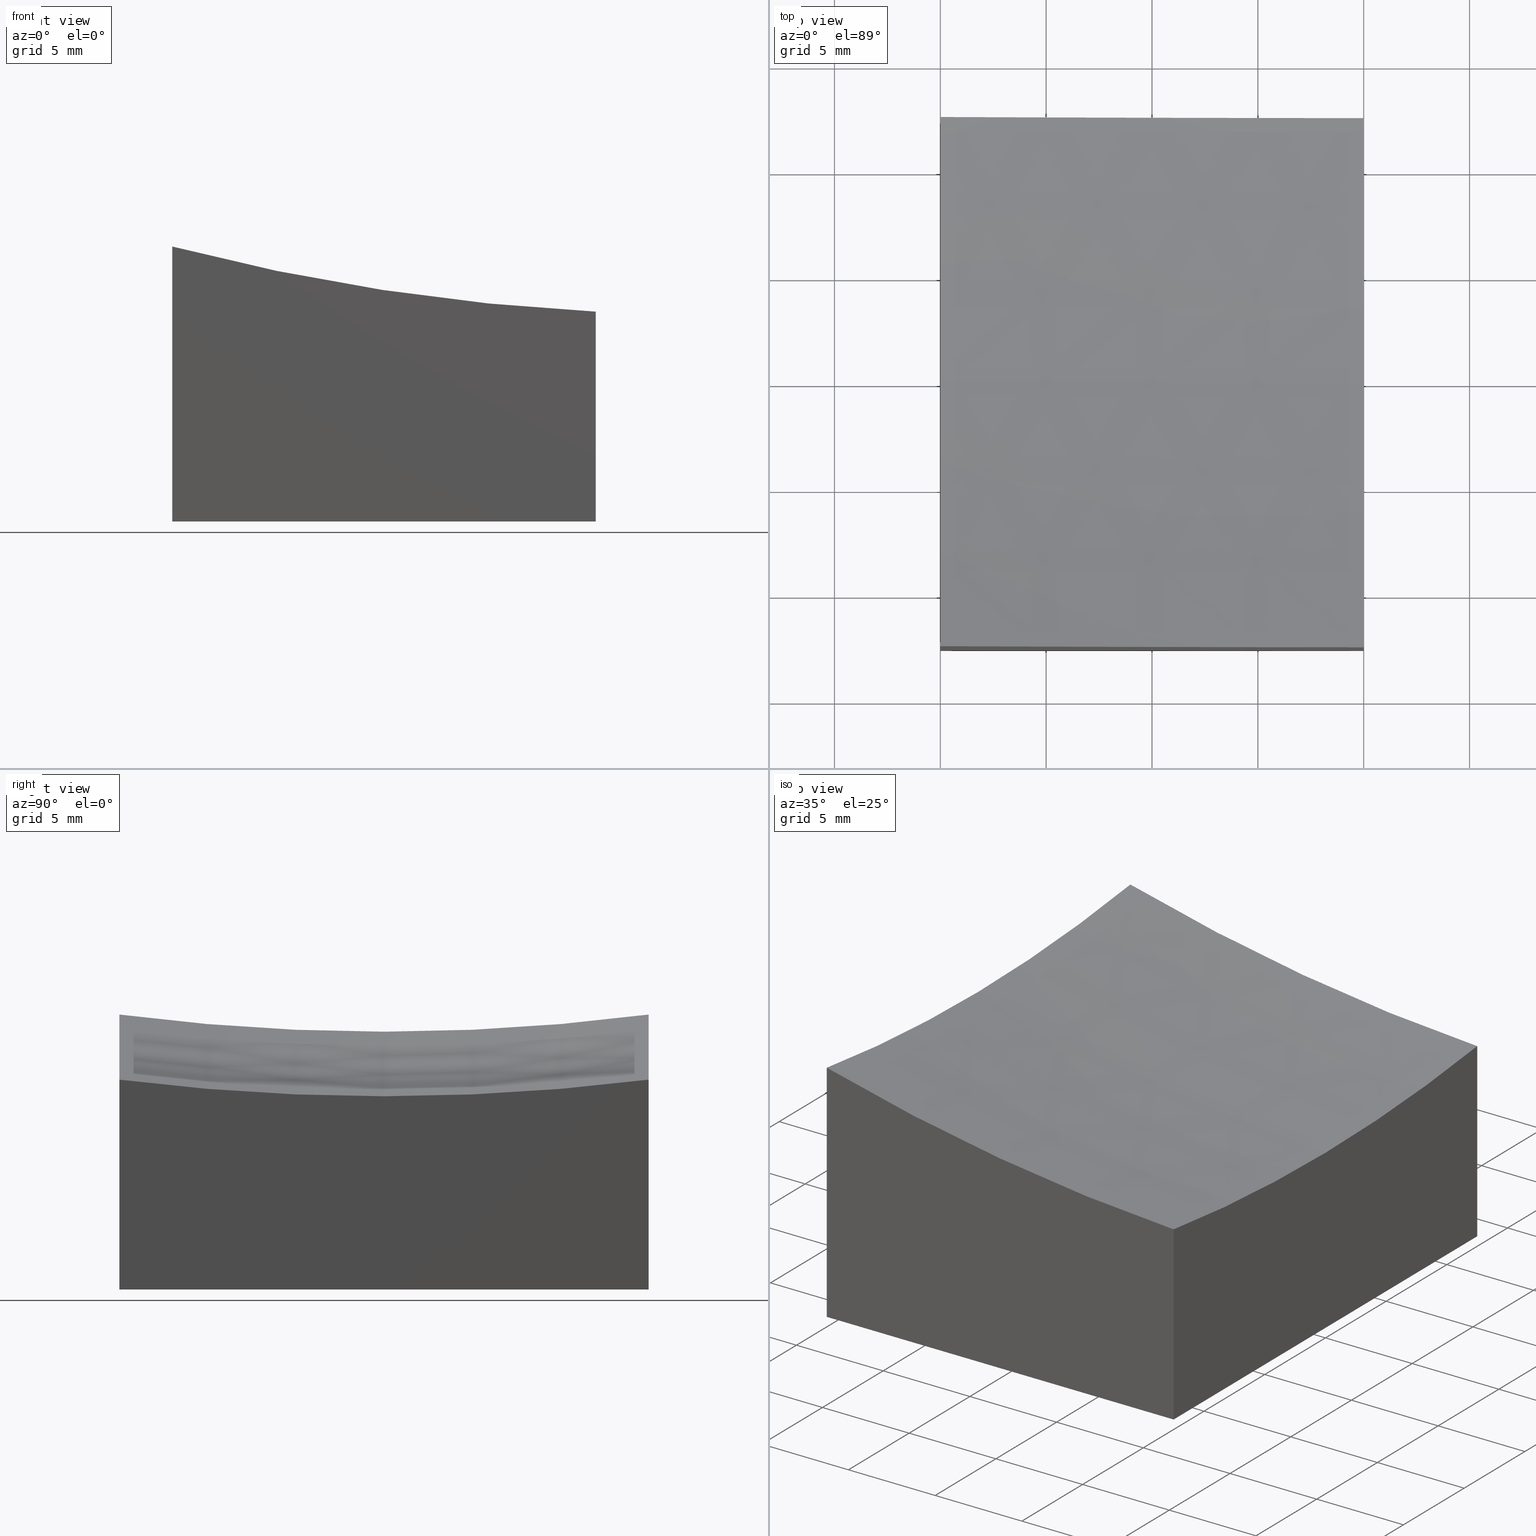
[diagram: canonical four-view strip — front | top / right | iso, engineering-drawing reading convention]
A machine part, canonical four-view strip (front | top / right | iso — engineering-drawing reading convention). The complete STEP part file that produces these views, byte-faithful:
ISO-10303-21;
HEADER;
FILE_DESCRIPTION (( 'STEP AP203' ),
    '1' );
FILE_NAME ('270635.STEP',
    '2024-12-24T02:27:21',
    ( '' ),
    ( '' ),
    'SwSTEP 2.0',
    'SolidWorks 2020',
    '' );
FILE_SCHEMA (( 'CONFIG_CONTROL_DESIGN' ));
ENDSEC;

DATA;
#1 = DATE_AND_TIME ( #251, #86 ) ;
#2 = EDGE_CURVE ( 'NONE', #212, #157, #226, .T. ) ;
#3 = DATE_AND_TIME ( #225, #25 ) ;
#4 = ORGANIZATION ( 'δָ��', 'δָ��', '' ) ;
#5 = PERSON_AND_ORGANIZATION ( #209, #4 ) ;
#6 = DIRECTION ( 'NONE',  ( 0.000000000000000000, 0.000000000000000000, 1.000000000000000000 ) ) ;
#7 = VERTEX_POINT ( 'NONE', #80 ) ;
#8 = CARTESIAN_POINT ( 'NONE',  ( 10.00000000000000178, -12.50000000000000000, 10.00000000000000000 ) ) ;
#9 = CC_DESIGN_PERSON_AND_ORGANIZATION_ASSIGNMENT ( #50, #83, ( #109 ) ) ;
#10 = CARTESIAN_POINT ( 'NONE',  ( -9.999999999999998224, 12.49999999999999645, -10.00000000000000000 ) ) ;
#11 = DIRECTION ( 'NONE',  ( -0.000000000000000000, -1.000000000000000000, -0.000000000000000000 ) ) ;
#12 = AXIS2_PLACEMENT_3D ( 'NONE', #122, #200, #274 ) ;
#13 = DIRECTION ( 'NONE',  ( -0.000000000000000000, -0.000000000000000000, -1.000000000000000000 ) ) ;
#14 = ADVANCED_FACE ( 'NONE', ( #162 ), #53, .F. ) ;
#15 = ORIENTED_EDGE ( 'NONE', *, *, #2, .T. ) ;
#16 = DIRECTION ( 'NONE',  ( -0.000000000000000000, -0.000000000000000000, -1.000000000000000000 ) ) ;
#17 = CARTESIAN_POINT ( 'NONE',  ( 10.00000000000000178, 12.50000000000000000, -0.08960591303207310343 ) ) ;
#18 = AXIS2_PLACEMENT_3D ( 'NONE', #99, #264, #140 ) ;
#19 = ORIENTED_EDGE ( 'NONE', *, *, #188, .T. ) ;
#20 = LINE ( 'NONE', #187, #32 ) ;
#21 = APPROVAL_DATE_TIME ( #3, #165 ) ;
#22 = ORIENTED_EDGE ( 'NONE', *, *, #68, .T. ) ;
#23 = PRODUCT_RELATED_PRODUCT_CATEGORY ( 'detail', '', ( #236 ) ) ;
#24 = APPROVAL_DATE_TIME ( #231, #51 ) ;
#25 = LOCAL_TIME ( 10, 27, 21.00000000000000000, #205 ) ;
#26 = DIRECTION ( 'NONE',  ( -0.000000000000000000, -0.000000000000000000, -1.000000000000000000 ) ) ;
#27 = PERSON_AND_ORGANIZATION ( #209, #4 ) ;
#28 = VECTOR ( 'NONE', #247, 1000.000000000000000 ) ;
#29 = ORIENTED_EDGE ( 'NONE', *, *, #68, .F. ) ;
#30 = DIRECTION ( 'NONE',  ( -1.000000000000000000, -1.748436918438156363E-16, 0.000000000000000000 ) ) ;
#31 = ORIENTED_EDGE ( 'NONE', *, *, #216, .T. ) ;
#32 = VECTOR ( 'NONE', #26, 1000.000000000000000 ) ;
#33 = CC_DESIGN_PERSON_AND_ORGANIZATION_ASSIGNMENT ( #203, #147, ( #236 ) ) ;
#34 = ORIENTED_EDGE ( 'NONE', *, *, #211, .T. ) ;
#35 = ORIENTED_EDGE ( 'NONE', *, *, #93, .F. ) ;
#36 = ORIENTED_EDGE ( 'NONE', *, *, #211, .F. ) ;
#37 = CARTESIAN_POINT ( 'NONE',  ( -9.999999999999998224, -12.50000000000000355, -10.00000000000000000 ) ) ;
#38 = CARTESIAN_POINT ( 'NONE',  ( 10.00000000000000178, -12.50000000000000000, -10.00000000000000000 ) ) ;
#39 = CARTESIAN_POINT ( 'NONE',  ( 10.00000000000000178, -12.50000000000000000, -10.00000000000000000 ) ) ;
#40 = DIRECTION ( 'NONE',  ( 0.000000000000000000, 0.000000000000000000, -1.000000000000000000 ) ) ;
#41 = CARTESIAN_POINT ( 'NONE',  ( 15.00000000000001421, 12.50000000000000178, 99.00000000000000000 ) ) ;
#42 = CARTESIAN_POINT ( 'NONE',  ( 10.00000000000000178, -12.50000000000000000, 10.00000000000000000 ) ) ;
#43 = VECTOR ( 'NONE', #59, 1000.000000000000000 ) ;
#44 = EDGE_CURVE ( 'NONE', #259, #160, #268, .T. ) ;
#45 = MECHANICAL_CONTEXT ( 'NONE', #167, 'mechanical' ) ;
#46 = CALENDAR_DATE ( 2024, 24, 12 ) ;
#47 = EDGE_CURVE ( 'NONE', #119, #210, #96, .T. ) ;
#48 = PERSON_AND_ORGANIZATION ( #209, #4 ) ;
#49 = APPROVAL_PERSON_ORGANIZATION ( #48, #51, #255 ) ;
#50 = PERSON_AND_ORGANIZATION ( #209, #4 ) ;
#51 = APPROVAL ( #85, 'δָ��' ) ;
#52 = PLANE ( 'NONE',  #69 ) ;
#53 = PLANE ( 'NONE',  #111 ) ;
#54 = DIRECTION ( 'NONE',  ( 1.000000000000000000, 1.734723475976807094E-16, -0.000000000000000000 ) ) ;
#55 = EDGE_CURVE ( 'NONE', #179, #210, #124, .T. ) ;
#56 = AXIS2_PLACEMENT_3D ( 'NONE', #101, #184, #273 ) ;
#57 = DIRECTION ( 'NONE',  ( 0.000000000000000000, -1.000000000000000000, -0.000000000000000000 ) ) ;
#58 = FACE_OUTER_BOUND ( 'NONE', #116, .T. ) ;
#59 = DIRECTION ( 'NONE',  ( -1.000000000000000000, -1.734723475976807094E-16, 0.000000000000000000 ) ) ;
#60 = SPHERICAL_SURFACE ( 'NONE', #239, 100.0000000000000000 ) ;
#61 = APPROVAL_PERSON_ORGANIZATION ( #27, #183, #95 ) ;
#62 = CARTESIAN_POINT ( 'NONE',  ( 10.00000000000000178, 12.50000000000000000, -10.00000000000000000 ) ) ;
#63 = DATE_TIME_ROLE ( 'creation_date' ) ;
#64 = PERSON_AND_ORGANIZATION_ROLE ( 'design_supplier' ) ;
#65 = PERSON_AND_ORGANIZATION_ROLE ( 'classification_officer' ) ;
#66 = AXIS2_PLACEMENT_3D ( 'NONE', #223, #197, #40 ) ;
#67 = CALENDAR_DATE ( 2024, 24, 12 ) ;
#68 = EDGE_CURVE ( 'NONE', #7, #119, #172, .T. ) ;
#69 = AXIS2_PLACEMENT_3D ( 'NONE', #132, #180, #118 ) ;
#70 = DESIGN_CONTEXT ( 'detailed design', #257, 'design' ) ;
#71 = ORIENTED_EDGE ( 'NONE', *, *, #216, .F. ) ;
#72 = ORIENTED_EDGE ( 'NONE', *, *, #128, .T. ) ;
#73 = CALENDAR_DATE ( 2024, 24, 12 ) ;
#74 = APPROVAL_STATUS ( 'not_yet_approved' ) ;
#75 = DIRECTION ( 'NONE',  ( -1.000000000000000000, 0.000000000000000000, 0.000000000000000000 ) ) ;
#76 = CARTESIAN_POINT ( 'NONE',  ( 10.00000000000000178, 0.000000000000000000, 99.00000000000000000 ) ) ;
#77 = DIRECTION ( 'NONE',  ( 1.000000000000000000, 0.000000000000000000, -1.387778780781445676E-16 ) ) ;
#78 = ORIENTED_EDGE ( 'NONE', *, *, #2, .F. ) ;
#79 = FACE_OUTER_BOUND ( 'NONE', #263, .T. ) ;
#80 = CARTESIAN_POINT ( 'NONE',  ( -9.999999999999998224, -12.50000000000000355, -10.00000000000000000 ) ) ;
#81 = DIRECTION ( 'NONE',  ( 0.000000000000000000, 0.000000000000000000, 1.000000000000000000 ) ) ;
#82 = LOCAL_TIME ( 10, 27, 21.00000000000000000, #148 ) ;
#83 = PERSON_AND_ORGANIZATION_ROLE ( 'creator' ) ;
#84 = PERSON_AND_ORGANIZATION_ROLE ( 'creator' ) ;
#85 = APPROVAL_STATUS ( 'not_yet_approved' ) ;
#86 = LOCAL_TIME ( 10, 27, 21.00000000000000000, #164 ) ;
#87 = CARTESIAN_POINT ( 'NONE',  ( 10.00000000000000178, -6.123233995736767268E-16, -0.8749217771908888164 ) ) ;
#88 = DIRECTION ( 'NONE',  ( 1.000000000000000000, 0.000000000000000000, 0.000000000000000000 ) ) ;
#89 = AXIS2_PLACEMENT_3D ( 'NONE', #137, #249, #81 ) ;
#90 = ADVANCED_FACE ( 'NONE', ( #258 ), #52, .F. ) ;
#91 = SHAPE_DEFINITION_REPRESENTATION ( #105, #221 ) ;
#92 = DIRECTION ( 'NONE',  ( -1.734723475976807094E-16, 1.000000000000000000, 0.000000000000000000 ) ) ;
#93 = EDGE_CURVE ( 'NONE', #210, #176, #242, .T. ) ;
#94 = ORIENTED_EDGE ( 'NONE', *, *, #55, .F. ) ;
#95 = APPROVAL_ROLE ( '' ) ;
#96 = LINE ( 'NONE', #38, #28 ) ;
#97 = CARTESIAN_POINT ( 'NONE',  ( 10.00000000000000178, -12.50000000000000000, 10.00000000000000000 ) ) ;
#98 = DIRECTION ( 'NONE',  ( -0.000000000000000000, -0.000000000000000000, -1.000000000000000000 ) ) ;
#99 = CARTESIAN_POINT ( 'NONE',  ( 10.00000000000000178, 12.50000000000000000, 10.00000000000000000 ) ) ;
#100 = FACE_OUTER_BOUND ( 'NONE', #192, .T. ) ;
#101 = CARTESIAN_POINT ( 'NONE',  ( 15.00000000000001421, 0.000000000000000000, 99.00000000000000000 ) ) ;
#102 = ADVANCED_FACE ( 'NONE', ( #143 ), #269, .F. ) ;
#103 = PLANE ( 'NONE',  #110 ) ;
#104 = AXIS2_PLACEMENT_3D ( 'NONE', #41, #182, #196 ) ;
#105 = PRODUCT_DEFINITION_SHAPE ( 'NONE', 'NONE',  #109 ) ;
#106 = EDGE_CURVE ( 'NONE', #157, #179, #224, .T. ) ;
#107 = APPROVAL_STATUS ( 'not_yet_approved' ) ;
#108 = AXIS2_PLACEMENT_3D ( 'NONE', #129, #6, #88 ) ;
#109 = PRODUCT_DEFINITION ( 'δ֪', '', #234, #70 ) ;
#110 = AXIS2_PLACEMENT_3D ( 'NONE', #121, #199, #138 ) ;
#111 = AXIS2_PLACEMENT_3D ( 'NONE', #8, #92, #175 ) ;
#112 = ORIENTED_EDGE ( 'NONE', *, *, #47, .T. ) ;
#113 = VECTOR ( 'NONE', #54, 1000.000000000000000 ) ;
#114 = ORIENTED_EDGE ( 'NONE', *, *, #44, .F. ) ;
#115 = CC_DESIGN_PERSON_AND_ORGANIZATION_ASSIGNMENT ( #254, #64, ( #234 ) ) ;
#116 = EDGE_LOOP ( 'NONE', ( #36, #35, #235, #29 ) ) ;
#117 = PLANE ( 'NONE',  #135 ) ;
#118 = DIRECTION ( 'NONE',  ( 0.000000000000000000, 0.000000000000000000, -1.000000000000000000 ) ) ;
#119 = VERTEX_POINT ( 'NONE', #39 ) ;
#120 = LOCAL_TIME ( 10, 27, 21.00000000000000000, #174 ) ;
#121 = CARTESIAN_POINT ( 'NONE',  ( 0.000000000000000000, 0.000000000000000000, -10.00000000000000000 ) ) ;
#122 = CARTESIAN_POINT ( 'NONE',  ( -10.00000000000000000, 0.000000000000000000, 99.00000000000000000 ) ) ;
#123 = DIRECTION ( 'NONE',  ( 0.000000000000000000, -1.000000000000000000, -0.000000000000000000 ) ) ;
#124 = LINE ( 'NONE', #195, #181 ) ;
#125 = SPHERICAL_SURFACE ( 'NONE', #213, 100.0000000000000000 ) ;
#126 =( GEOMETRIC_REPRESENTATION_CONTEXT ( 3 ) GLOBAL_UNCERTAINTY_ASSIGNED_CONTEXT ( ( #243 ) ) GLOBAL_UNIT_ASSIGNED_CONTEXT ( ( #169, #252, #208 ) ) REPRESENTATION_CONTEXT ( 'NONE', 'WORKASPACE' ) );
#127 = ORIENTED_EDGE ( 'NONE', *, *, #272, .T. ) ;
#128 = EDGE_CURVE ( 'NONE', #160, #212, #202, .T. ) ;
#129 = CARTESIAN_POINT ( 'NONE',  ( 0.000000000000000000, 0.000000000000000000, 0.000000000000000000 ) ) ;
#130 = DATE_AND_TIME ( #46, #82 ) ;
#131 = APPROVAL_DATE_TIME ( #232, #183 ) ;
#132 = CARTESIAN_POINT ( 'NONE',  ( -9.999999999999998224, -12.50000000000000355, 10.00000000000000000 ) ) ;
#133 = ORIENTED_EDGE ( 'NONE', *, *, #128, .F. ) ;
#134 = ORIENTED_EDGE ( 'NONE', *, *, #106, .T. ) ;
#135 = AXIS2_PLACEMENT_3D ( 'NONE', #42, #276, #163 ) ;
#136 = EDGE_CURVE ( 'NONE', #271, #259, #256, .T. ) ;
#137 = CARTESIAN_POINT ( 'NONE',  ( 10.00000000000000178, 0.000000000000000000, 99.00000000000000000 ) ) ;
#138 = DIRECTION ( 'NONE',  ( 1.000000000000000000, 0.000000000000000000, -0.000000000000000000 ) ) ;
#139 = ADVANCED_FACE ( 'NONE', ( #58 ), #103, .F. ) ;
#140 = DIRECTION ( 'NONE',  ( 1.000000000000000000, 1.734723475976807094E-16, 0.000000000000000000 ) ) ;
#141 = CC_DESIGN_APPROVAL ( #165, ( #234 ) ) ;
#142 = CARTESIAN_POINT ( 'NONE',  ( -9.999999999999998224, 12.49999999999999645, 2.985678151642384925 ) ) ;
#143 = FACE_OUTER_BOUND ( 'NONE', #198, .T. ) ;
#144 = VECTOR ( 'NONE', #16, 1000.000000000000000 ) ;
#145 = AXIS2_PLACEMENT_3D ( 'NONE', #152, #233, #30 ) ;
#146 = ADVANCED_FACE ( 'NONE', ( #217 ), #117, .F. ) ;
#147 = PERSON_AND_ORGANIZATION_ROLE ( 'design_owner' ) ;
#148 = COORDINATED_UNIVERSAL_TIME_OFFSET ( 8, 0, .AHEAD. ) ;
#149 = CARTESIAN_POINT ( 'NONE',  ( 10.00000000000000178, -12.50000000000000000, -10.00000000000000000 ) ) ;
#150 = CIRCLE ( 'NONE', #56, 100.0000000000000000 ) ;
#151 = APPLICATION_PROTOCOL_DEFINITION ( 'international standard', 'config_control_design', 1994, #167 ) ;
#152 = CARTESIAN_POINT ( 'NONE',  ( 15.00000000000001599, -12.49999999999999822, 99.00000000000000000 ) ) ;
#153 = CC_DESIGN_SECURITY_CLASSIFICATION ( #177, ( #234 ) ) ;
#154 = ORIENTED_EDGE ( 'NONE', *, *, #136, .F. ) ;
#155 = ORIENTED_EDGE ( 'NONE', *, *, #206, .F. ) ;
#156 = EDGE_LOOP ( 'NONE', ( #238, #193, #262, #22 ) ) ;
#157 = VERTEX_POINT ( 'NONE', #142 ) ;
#158 = CARTESIAN_POINT ( 'NONE',  ( -9.999999999999998224, -12.50000000000000355, 10.00000000000000000 ) ) ;
#159 = LINE ( 'NONE', #158, #275 ) ;
#160 = VERTEX_POINT ( 'NONE', #201 ) ;
#161 = CARTESIAN_POINT ( 'NONE',  ( 10.00000000000000178, 12.50000000000000000, -10.00000000000000000 ) ) ;
#162 = FACE_OUTER_BOUND ( 'NONE', #156, .T. ) ;
#163 = DIRECTION ( 'NONE',  ( 0.000000000000000000, 0.000000000000000000, 1.000000000000000000 ) ) ;
#164 = COORDINATED_UNIVERSAL_TIME_OFFSET ( 8, 0, .AHEAD. ) ;
#165 = APPROVAL ( #107, 'δָ��' ) ;
#166 = EDGE_CURVE ( 'NONE', #160, #7, #159, .T. ) ;
#167 = APPLICATION_CONTEXT ( 'configuration controlled 3d designs of mechanical parts and assemblies' ) ;
#168 = CC_DESIGN_DATE_AND_TIME_ASSIGNMENT ( #130, #207, ( #177 ) ) ;
#169 =( LENGTH_UNIT ( ) NAMED_UNIT ( * ) SI_UNIT ( .MILLI., .METRE. ) );
#170 = ADVANCED_FACE ( 'NONE', ( #100 ), #125, .F. ) ;
#171 = PERSON_AND_ORGANIZATION ( #209, #4 ) ;
#172 = LINE ( 'NONE', #149, #113 ) ;
#173 = AXIS2_PLACEMENT_3D ( 'NONE', #76, #75, #218 ) ;
#174 = COORDINATED_UNIVERSAL_TIME_OFFSET ( 8, 0, .AHEAD. ) ;
#175 = DIRECTION ( 'NONE',  ( -1.000000000000000000, -1.734723475976807094E-16, 0.000000000000000000 ) ) ;
#176 = VERTEX_POINT ( 'NONE', #10 ) ;
#177 = SECURITY_CLASSIFICATION ( '', '', #229 ) ;
#178 = EDGE_LOOP ( 'NONE', ( #260, #72, #15, #127, #34 ) ) ;
#179 = VERTEX_POINT ( 'NONE', #17 ) ;
#180 = DIRECTION ( 'NONE',  ( 1.000000000000000000, 0.000000000000000000, 0.000000000000000000 ) ) ;
#181 = VECTOR ( 'NONE', #98, 1000.000000000000000 ) ;
#182 = DIRECTION ( 'NONE',  ( 1.734723475976807094E-16, -1.000000000000000000, 0.000000000000000000 ) ) ;
#183 = APPROVAL ( #74, 'δָ��' ) ;
#184 = DIRECTION ( 'NONE',  ( 1.224646799147353207E-16, -1.000000000000000000, -1.487096486582537186E-32 ) ) ;
#185 = DIRECTION ( 'NONE',  ( 1.000000000000000000, 0.000000000000000000, -1.387778780781445676E-16 ) ) ;
#186 = APPLICATION_PROTOCOL_DEFINITION ( 'international standard', 'config_control_design', 1994, #257 ) ;
#187 = CARTESIAN_POINT ( 'NONE',  ( -9.999999999999998224, 12.49999999999999645, 10.00000000000000000 ) ) ;
#188 = EDGE_CURVE ( 'NONE', #259, #119, #240, .T. ) ;
#189 = PERSON_AND_ORGANIZATION ( #209, #4 ) ;
#190 = VECTOR ( 'NONE', #11, 1000.000000000000000 ) ;
#191 = ORIENTED_EDGE ( 'NONE', *, *, #206, .T. ) ;
#192 = EDGE_LOOP ( 'NONE', ( #78, #31, #155, #194 ) ) ;
#193 = ORIENTED_EDGE ( 'NONE', *, *, #44, .T. ) ;
#194 = ORIENTED_EDGE ( 'NONE', *, *, #106, .F. ) ;
#195 = CARTESIAN_POINT ( 'NONE',  ( 10.00000000000000178, 12.50000000000000000, 10.00000000000000000 ) ) ;
#196 = DIRECTION ( 'NONE',  ( 1.000000000000000000, 1.748436918438156363E-16, 0.000000000000000000 ) ) ;
#197 = DIRECTION ( 'NONE',  ( 1.000000000000000000, 0.000000000000000000, 0.000000000000000000 ) ) ;
#198 = EDGE_LOOP ( 'NONE', ( #219, #134, #204, #227 ) ) ;
#199 = DIRECTION ( 'NONE',  ( 0.000000000000000000, -0.000000000000000000, 1.000000000000000000 ) ) ;
#200 = DIRECTION ( 'NONE',  ( 1.000000000000000000, 0.000000000000000000, 0.000000000000000000 ) ) ;
#201 = CARTESIAN_POINT ( 'NONE',  ( -9.999999999999998224, -12.50000000000000355, 2.985678151642384925 ) ) ;
#202 = CIRCLE ( 'NONE', #66, 96.82458365518542109 ) ;
#203 = PERSON_AND_ORGANIZATION ( #209, #4 ) ;
#204 = ORIENTED_EDGE ( 'NONE', *, *, #55, .T. ) ;
#205 = COORDINATED_UNIVERSAL_TIME_OFFSET ( 8, 0, .AHEAD. ) ;
#206 = EDGE_CURVE ( 'NONE', #179, #271, #267, .T. ) ;
#207 = DATE_TIME_ROLE ( 'classification_date' ) ;
#208 =( NAMED_UNIT ( * ) SI_UNIT ( $, .STERADIAN. ) SOLID_ANGLE_UNIT ( ) );
#209 = PERSON ( 'δָ��', 'δָ��', 'δָ��', ('δָ��'), ('δָ��'), ('δָ��') ) ;
#210 = VERTEX_POINT ( 'NONE', #161 ) ;
#211 = EDGE_CURVE ( 'NONE', #176, #7, #215, .T. ) ;
#212 = VERTEX_POINT ( 'NONE', #244 ) ;
#213 = AXIS2_PLACEMENT_3D ( 'NONE', #270, #57, #77 ) ;
#214 = ORIENTED_EDGE ( 'NONE', *, *, #136, .T. ) ;
#215 = LINE ( 'NONE', #37, #190 ) ;
#216 = EDGE_CURVE ( 'NONE', #212, #271, #150, .T. ) ;
#217 = FACE_OUTER_BOUND ( 'NONE', #237, .T. ) ;
#218 = DIRECTION ( 'NONE',  ( 0.000000000000000000, 0.000000000000000000, 1.000000000000000000 ) ) ;
#219 = ORIENTED_EDGE ( 'NONE', *, *, #272, .F. ) ;
#220 = LOCAL_TIME ( 10, 27, 21.00000000000000000, #277 ) ;
#221 = ADVANCED_BREP_SHAPE_REPRESENTATION ( '270635', ( #266, #108 ), #126 ) ;
#222 = CARTESIAN_POINT ( 'NONE',  ( 15.00000000000001421, 0.000000000000000000, 99.00000000000000000 ) ) ;
#223 = CARTESIAN_POINT ( 'NONE',  ( -10.00000000000000000, 0.000000000000000000, 99.00000000000000000 ) ) ;
#224 = CIRCLE ( 'NONE', #104, 99.21567416492216296 ) ;
#225 = CALENDAR_DATE ( 2024, 24, 12 ) ;
#226 = CIRCLE ( 'NONE', #12, 96.82458365518542109 ) ;
#227 = ORIENTED_EDGE ( 'NONE', *, *, #93, .T. ) ;
#228 = APPROVAL_ROLE ( '' ) ;
#229 = SECURITY_CLASSIFICATION_LEVEL ( 'unclassified' ) ;
#230 = CC_DESIGN_APPROVAL ( #183, ( #177 ) ) ;
#231 = DATE_AND_TIME ( #67, #220 ) ;
#232 = DATE_AND_TIME ( #73, #120 ) ;
#233 = DIRECTION ( 'NONE',  ( -1.734723475976807094E-16, 1.000000000000000000, 0.000000000000000000 ) ) ;
#234 = PRODUCT_DEFINITION_FORMATION_WITH_SPECIFIED_SOURCE ( '�κ�', '', #236, .NOT_KNOWN. ) ;
#235 = ORIENTED_EDGE ( 'NONE', *, *, #47, .F. ) ;
#236 = PRODUCT ( '270635', '270635', '', ( #45 ) ) ;
#237 = EDGE_LOOP ( 'NONE', ( #94, #191, #214, #19, #112 ) ) ;
#238 = ORIENTED_EDGE ( 'NONE', *, *, #188, .F. ) ;
#239 = AXIS2_PLACEMENT_3D ( 'NONE', #222, #123, #185 ) ;
#240 = LINE ( 'NONE', #97, #144 ) ;
#241 = CC_DESIGN_PERSON_AND_ORGANIZATION_ASSIGNMENT ( #189, #84, ( #234 ) ) ;
#242 = LINE ( 'NONE', #62, #43 ) ;
#243 = UNCERTAINTY_MEASURE_WITH_UNIT (LENGTH_MEASURE( 1.000000000000000082E-05 ), #169, 'distance_accuracy_value', 'NONE');
#244 = CARTESIAN_POINT ( 'NONE',  ( -9.999999999999998224, -3.061616997868383043E-15, 2.175416344814578906 ) ) ;
#245 = ADVANCED_FACE ( 'NONE', ( #79 ), #60, .F. ) ;
#246 = CARTESIAN_POINT ( 'NONE',  ( 10.00000000000000178, -12.50000000000000000, -0.08960591303207310343 ) ) ;
#247 = DIRECTION ( 'NONE',  ( 0.000000000000000000, 1.000000000000000000, 0.000000000000000000 ) ) ;
#248 = CC_DESIGN_APPROVAL ( #51, ( #109 ) ) ;
#249 = DIRECTION ( 'NONE',  ( -1.000000000000000000, 0.000000000000000000, 0.000000000000000000 ) ) ;
#250 = CC_DESIGN_PERSON_AND_ORGANIZATION_ASSIGNMENT ( #5, #65, ( #177 ) ) ;
#251 = CALENDAR_DATE ( 2024, 24, 12 ) ;
#252 =( NAMED_UNIT ( * ) PLANE_ANGLE_UNIT ( ) SI_UNIT ( $, .RADIAN. ) );
#253 = CLOSED_SHELL ( 'NONE', ( #170, #90, #14, #146, #102, #139, #245 ) ) ;
#254 = PERSON_AND_ORGANIZATION ( #209, #4 ) ;
#255 = APPROVAL_ROLE ( '' ) ;
#256 = CIRCLE ( 'NONE', #173, 99.87492177719090591 ) ;
#257 = APPLICATION_CONTEXT ( 'configuration controlled 3d designs of mechanical parts and assemblies' ) ;
#258 = FACE_OUTER_BOUND ( 'NONE', #178, .T. ) ;
#259 = VERTEX_POINT ( 'NONE', #246 ) ;
#260 = ORIENTED_EDGE ( 'NONE', *, *, #166, .F. ) ;
#261 = APPROVAL_PERSON_ORGANIZATION ( #171, #165, #228 ) ;
#262 = ORIENTED_EDGE ( 'NONE', *, *, #166, .T. ) ;
#263 = EDGE_LOOP ( 'NONE', ( #71, #133, #114, #154 ) ) ;
#264 = DIRECTION ( 'NONE',  ( 1.734723475976807094E-16, -1.000000000000000000, 0.000000000000000000 ) ) ;
#265 = CC_DESIGN_DATE_AND_TIME_ASSIGNMENT ( #1, #63, ( #109 ) ) ;
#266 = MANIFOLD_SOLID_BREP ( '�г�-��ת8', #253 ) ;
#267 = CIRCLE ( 'NONE', #89, 99.87492177719090591 ) ;
#268 = CIRCLE ( 'NONE', #145, 99.21567416492216296 ) ;
#269 = PLANE ( 'NONE',  #18 ) ;
#270 = CARTESIAN_POINT ( 'NONE',  ( 15.00000000000001421, 0.000000000000000000, 99.00000000000000000 ) ) ;
#271 = VERTEX_POINT ( 'NONE', #87 ) ;
#272 = EDGE_CURVE ( 'NONE', #157, #176, #20, .T. ) ;
#273 = DIRECTION ( 'NONE',  ( 1.000000000000000000, 1.224646799147353207E-16, 0.000000000000000000 ) ) ;
#274 = DIRECTION ( 'NONE',  ( 0.000000000000000000, 0.000000000000000000, -1.000000000000000000 ) ) ;
#275 = VECTOR ( 'NONE', #13, 1000.000000000000000 ) ;
#276 = DIRECTION ( 'NONE',  ( -1.000000000000000000, 0.000000000000000000, 0.000000000000000000 ) ) ;
#277 = COORDINATED_UNIVERSAL_TIME_OFFSET ( 8, 0, .AHEAD. ) ;
ENDSEC;
END-ISO-10303-21;
